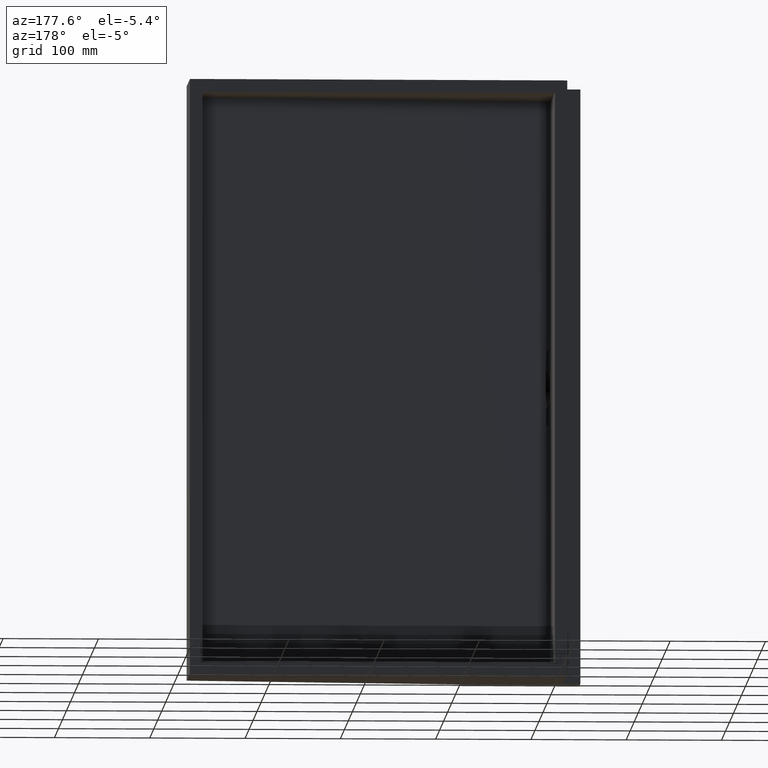
[diagram: clean part render]
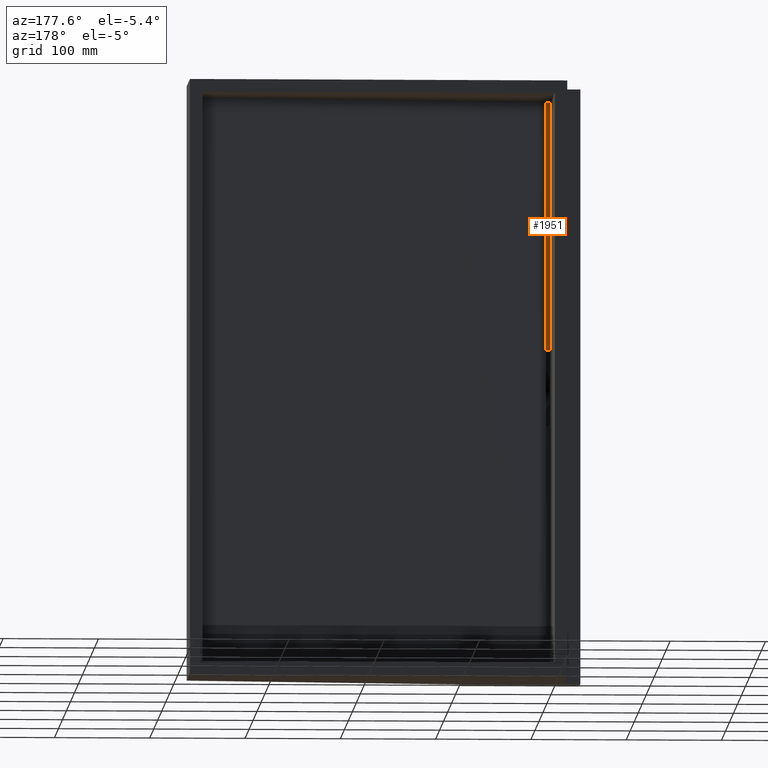
[diagram: same view with one face highlighted and labeled with its STEP entity id]
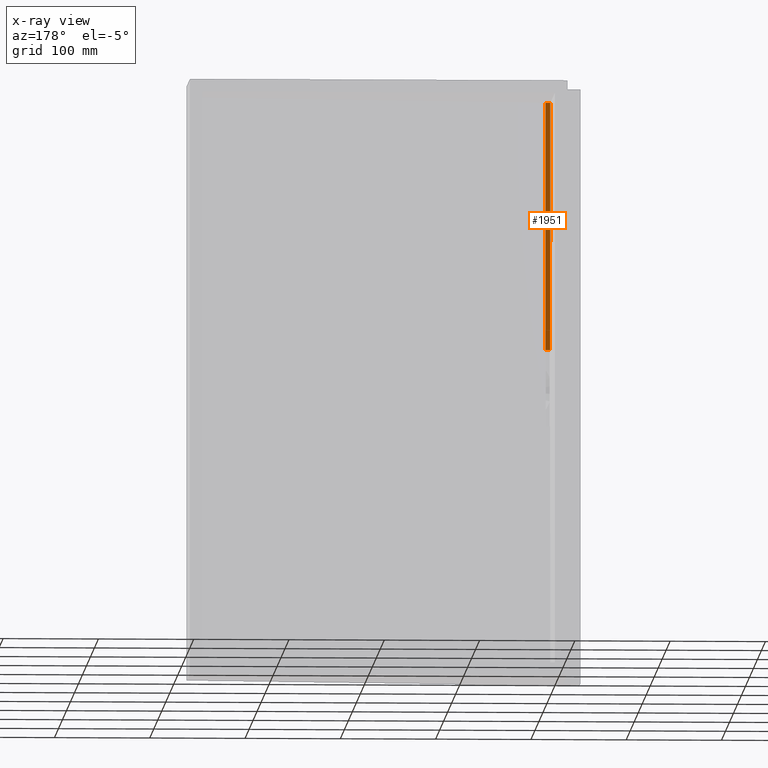
[diagram: x-ray of the same camera — body ghosted, the highlighted face saturated]
A machine part, auxiliary view. The second image highlights one B-rep face of the part: STEP entity #1951.
The next image is the same camera in x-ray: the body ghosted, the highlighted face saturated — about 0% of this face is hidden behind the body in this view.
In plain terms, the highlighted planar face has unit normal (0, -0.9998, 0.0192).
Its self-contained STEP definition (entity closure, byte-faithful):
#140 = ORIENTED_EDGE ( 'NONE', *, *, #1545, .T. ) ;
#143 = ORIENTED_EDGE ( 'NONE', *, *, #1443, .F. ) ;
#334 = ORIENTED_EDGE ( 'NONE', *, *, #2446, .T. ) ;
#408 = PLANE ( 'NONE',  #1590 ) ;
#467 = CARTESIAN_POINT ( 'NONE',  ( 0.0000000000000000000, -119.0000000000000400, -260.0000000000000000 ) ) ;
#516 = CARTESIAN_POINT ( 'NONE',  ( 278.7316203875614100, -119.0000000000000300, -260.0000000000000000 ) ) ;
#625 = VECTOR ( 'NONE', #736, 1000.000000000000000 ) ;
#632 = CARTESIAN_POINT ( 'NONE',  ( 278.7316203875614100, -114.0000000000001000, 0.0000000000000000000 ) ) ;
#663 = VECTOR ( 'NONE', #2683, 1000.000000000000000 ) ;
#688 = ORIENTED_EDGE ( 'NONE', *, *, #2235, .T. ) ;
#736 = DIRECTION ( 'NONE',  ( -1.000000000000000000, -0.0000000000000000000, -0.0000000000000000000 ) ) ;
#920 = VECTOR ( 'NONE', #1439, 1000.000000000000000 ) ;
#962 = EDGE_LOOP ( 'NONE', ( #143, #688, #334, #140 ) ) ;
#1085 = DIRECTION ( 'NONE',  ( 0.0000000000000000000, -0.9998151400298467300, 0.01922721423134289900 ) ) ;
#1111 = DIRECTION ( 'NONE',  ( -0.0000000000000000000, 0.01922721423134290300, 0.9998151400298467300 ) ) ;
#1316 = LINE ( 'NONE', #1544, #663 ) ;
#1403 = LINE ( 'NONE', #2679, #1926 ) ;
#1439 = DIRECTION ( 'NONE',  ( -1.000000000000000000, -0.0000000000000000000, -0.0000000000000000000 ) ) ;
#1443 = EDGE_CURVE ( 'NONE', #1834, #2202, #2497, .T. ) ;
#1497 = CARTESIAN_POINT ( 'NONE',  ( 5.000000000000007100, -114.0000000000001000, 0.0000000000000000000 ) ) ;
#1544 = CARTESIAN_POINT ( 'NONE',  ( 5.000000000000004400, -114.0000000000001000, -6.846246969366072900E-016 ) ) ;
#1545 = EDGE_CURVE ( 'NONE', #1607, #2202, #1403, .T. ) ;
#1590 = AXIS2_PLACEMENT_3D ( 'NONE', #632, #1085, #2658 ) ;
#1607 = VERTEX_POINT ( 'NONE', #467 ) ;
#1662 = VERTEX_POINT ( 'NONE', #2252 ) ;
#1752 = CARTESIAN_POINT ( 'NONE',  ( 0.0000000000000000000, -114.0000000000001000, 0.0000000000000000000 ) ) ;
#1807 = LINE ( 'NONE', #516, #625 ) ;
#1834 = VERTEX_POINT ( 'NONE', #1497 ) ;
#1926 = VECTOR ( 'NONE', #1111, 1000.000000000000000 ) ;
#1951 = ADVANCED_FACE ( 'NONE', ( #2740 ), #408, .F. ) ;
#2202 = VERTEX_POINT ( 'NONE', #1752 ) ;
#2235 = EDGE_CURVE ( 'NONE', #1834, #1662, #1316, .T. ) ;
#2252 = CARTESIAN_POINT ( 'NONE',  ( 5.000000000000007100, -119.0000000000000300, -260.0000000000000000 ) ) ;
#2446 = EDGE_CURVE ( 'NONE', #1662, #1607, #1807, .T. ) ;
#2497 = LINE ( 'NONE', #2566, #920 ) ;
#2566 = CARTESIAN_POINT ( 'NONE',  ( 278.7316203875614100, -114.0000000000001000, 0.0000000000000000000 ) ) ;
#2658 = DIRECTION ( 'NONE',  ( 0.0000000000000000000, -0.01922721423134289900, -0.9998151400298467300 ) ) ;
#2679 = CARTESIAN_POINT ( 'NONE',  ( 0.0000000000000000000, -114.0000000000001000, 0.0000000000000000000 ) ) ;
#2683 = DIRECTION ( 'NONE',  ( 2.501542492855944900E-018, -0.01922721423134289900, -0.9998151400298467300 ) ) ;
#2740 = FACE_OUTER_BOUND ( 'NONE', #962, .T. ) ;